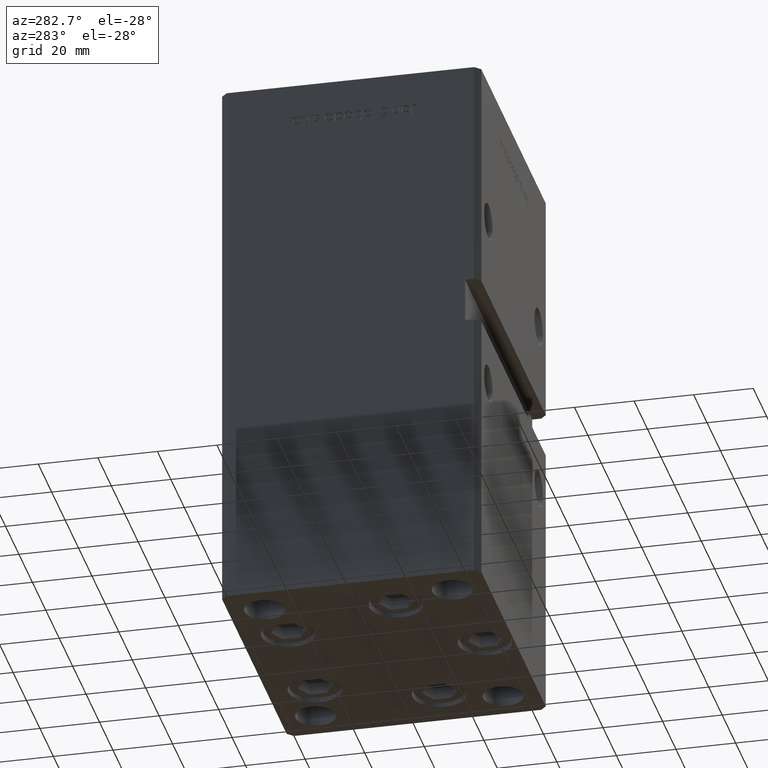
[diagram: clean part render]
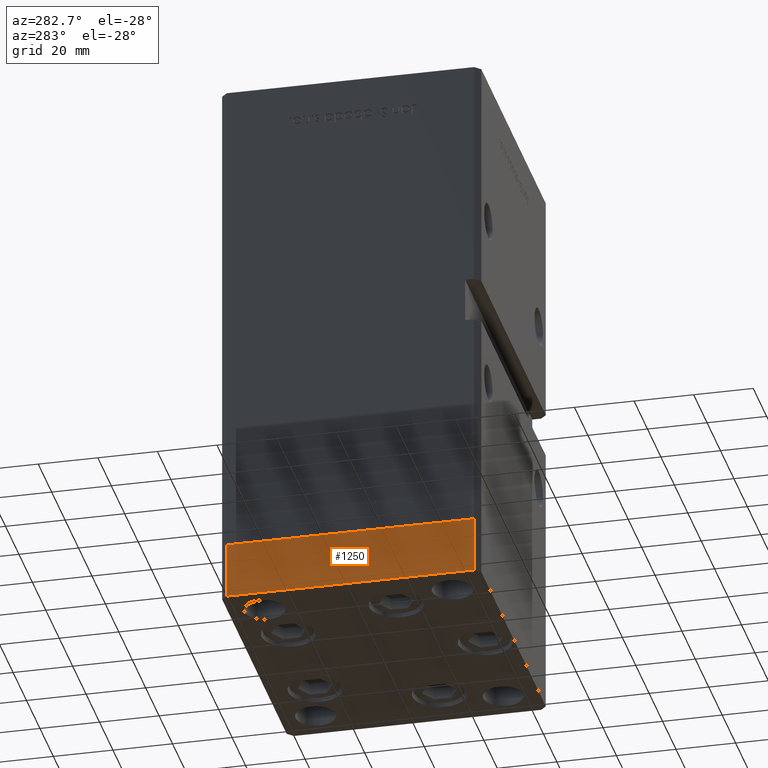
[diagram: same view with one face highlighted and labeled with its STEP entity id]
A machine part, auxiliary view. The second image highlights one B-rep face of the part: STEP entity #1250.
In plain terms, the highlighted planar face has unit normal (-1, -0, 0).
Its self-contained STEP definition (entity closure, byte-faithful):
#433 = DIRECTION ( 'NONE',  ( -1.003213576468515193E-15, 1.000000000000000000, 0.000000000000000000 ) ) ;
#1250 = ADVANCED_FACE ( 'NONE', ( #29483 ), #20885, .T. ) ;
#2452 = LINE ( 'NONE', #34742, #42268 ) ;
#3233 = VECTOR ( 'NONE', #19814, 1000.000000000000000 ) ;
#3258 = CARTESIAN_POINT ( 'NONE',  ( 50.00000000000000000, -41.49999999999999289, 0.000000000000000000 ) ) ;
#5828 = ORIENTED_EDGE ( 'NONE', *, *, #28779, .T. ) ;
#6480 = ORIENTED_EDGE ( 'NONE', *, *, #44160, .F. ) ;
#6822 = VERTEX_POINT ( 'NONE', #17722 ) ;
#9830 = DIRECTION ( 'NONE',  ( -1.003213576468515193E-15, 1.000000000000000000, 0.000000000000000000 ) ) ;
#13331 = DIRECTION ( 'NONE',  ( 1.000000000000000000, 1.003213576468515193E-15, -0.000000000000000000 ) ) ;
#13415 = ORIENTED_EDGE ( 'NONE', *, *, #33616, .F. ) ;
#14114 = LINE ( 'NONE', #24967, #46562 ) ;
#16863 = VERTEX_POINT ( 'NONE', #24766 ) ;
#17722 = CARTESIAN_POINT ( 'NONE',  ( 50.00000000000000000, -41.49999999999999289, -19.00000000000000000 ) ) ;
#19814 = DIRECTION ( 'NONE',  ( 0.000000000000000000, 0.000000000000000000, 1.000000000000000000 ) ) ;
#20819 = CARTESIAN_POINT ( 'NONE',  ( 49.99999999999992184, 41.49999999999998579, -19.00000000000000000 ) ) ;
#20885 = PLANE ( 'NONE',  #49502 ) ;
#22628 = DIRECTION ( 'NONE',  ( -1.003213576468515193E-15, 1.000000000000000000, 0.000000000000000000 ) ) ;
#24251 = VERTEX_POINT ( 'NONE', #3258 ) ;
#24766 = CARTESIAN_POINT ( 'NONE',  ( 49.99999999999992184, 41.49999999999998579, 0.000000000000000000 ) ) ;
#24967 = CARTESIAN_POINT ( 'NONE',  ( 50.00000000000000000, -41.49999999999999289, -19.00000000000000000 ) ) ;
#28005 = EDGE_LOOP ( 'NONE', ( #13415, #6480, #32901, #5828 ) ) ;
#28351 = EDGE_CURVE ( 'NONE', #6822, #39124, #14114, .T. ) ;
#28557 = CARTESIAN_POINT ( 'NONE',  ( 49.99999999999992184, 41.49999999999998579, -19.00000000000000000 ) ) ;
#28779 = EDGE_CURVE ( 'NONE', #39124, #16863, #45194, .T. ) ;
#29075 = DIRECTION ( 'NONE',  ( 0.000000000000000000, 0.000000000000000000, 1.000000000000000000 ) ) ;
#29483 = FACE_OUTER_BOUND ( 'NONE', #28005, .T. ) ;
#32901 = ORIENTED_EDGE ( 'NONE', *, *, #28351, .T. ) ;
#33616 = EDGE_CURVE ( 'NONE', #24251, #16863, #2452, .T. ) ;
#34742 = CARTESIAN_POINT ( 'NONE',  ( 50.00000000000000000, -41.49999999999999289, 0.000000000000000000 ) ) ;
#36482 = CARTESIAN_POINT ( 'NONE',  ( 50.00000000000000000, -41.49999999999999289, -19.00000000000000000 ) ) ;
#39124 = VERTEX_POINT ( 'NONE', #20819 ) ;
#41304 = CARTESIAN_POINT ( 'NONE',  ( 50.00000000000000000, -41.49999999999999289, -19.00000000000000000 ) ) ;
#42268 = VECTOR ( 'NONE', #22628, 1000.000000000000000 ) ;
#43116 = VECTOR ( 'NONE', #29075, 1000.000000000000000 ) ;
#44160 = EDGE_CURVE ( 'NONE', #6822, #24251, #44537, .T. ) ;
#44537 = LINE ( 'NONE', #36482, #3233 ) ;
#45194 = LINE ( 'NONE', #28557, #43116 ) ;
#46562 = VECTOR ( 'NONE', #9830, 1000.000000000000000 ) ;
#49502 = AXIS2_PLACEMENT_3D ( 'NONE', #41304, #13331, #433 ) ;